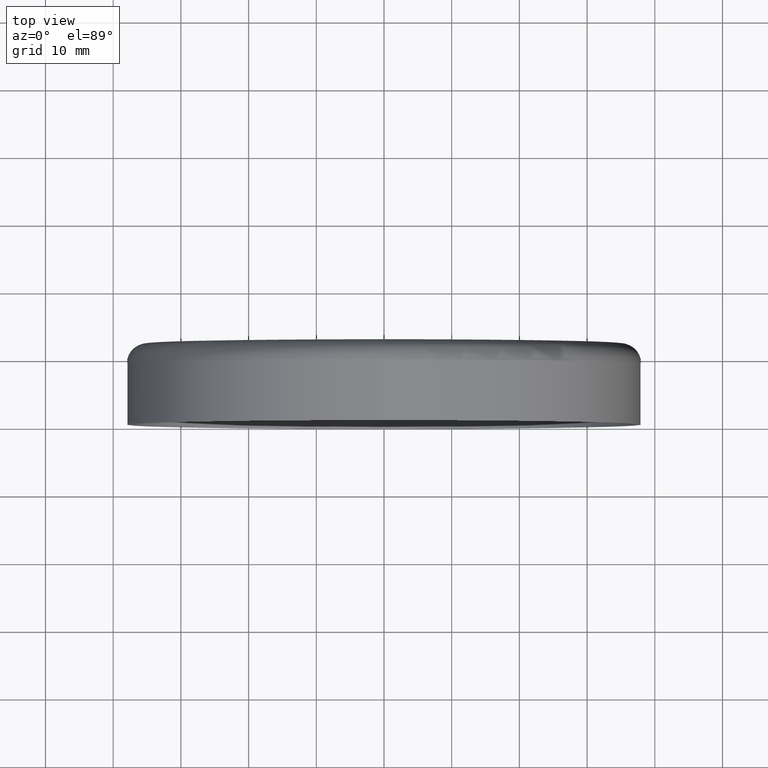
[diagram: clean part render]
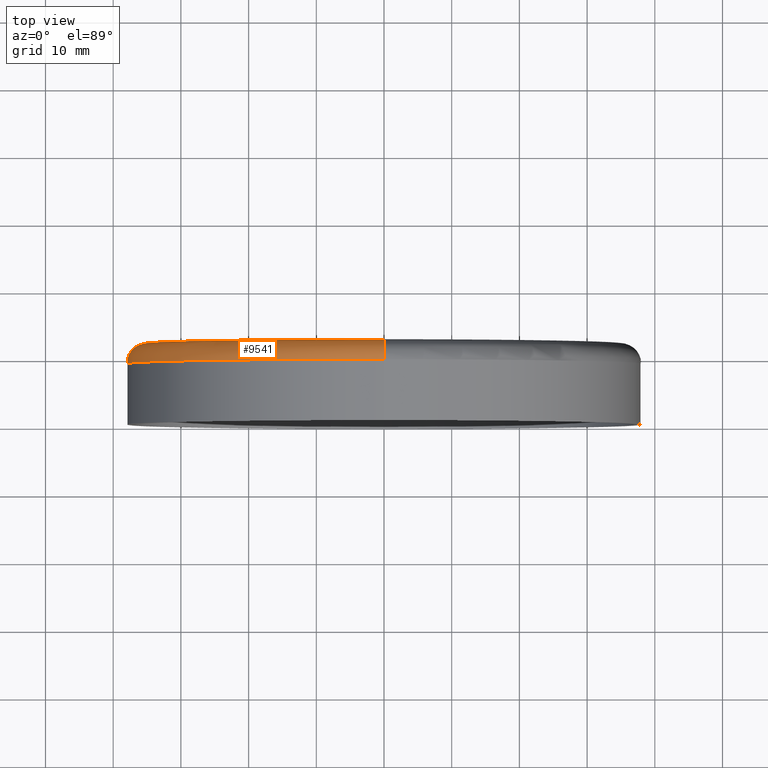
[diagram: same view with one face highlighted and labeled with its STEP entity id]
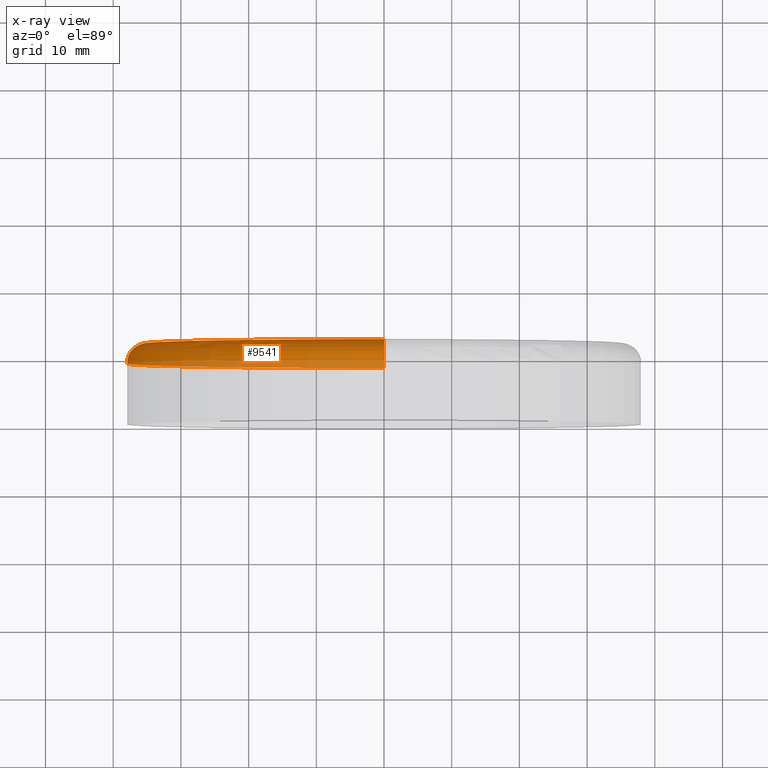
[diagram: x-ray of the same camera — body ghosted, the highlighted face saturated]
A machine part, top view. The second image highlights one B-rep face of the part: STEP entity #9541.
The next image is the same camera in x-ray: the body ghosted, the highlighted face saturated — about 27% of this face is hidden behind the body in this view.
In plain terms, the highlighted toroidal blend (fillet) surface has major radius 35 mm and minor (blend) radius 3 mm.
Its self-contained STEP definition (entity closure, byte-faithful):
#413 = AXIS2_PLACEMENT_3D ( 'NONE', #12898, #8841, #10985 ) ;
#534 = CIRCLE ( 'NONE', #8892, 38.00000000000000711 ) ;
#720 = VERTEX_POINT ( 'NONE', #7881 ) ;
#1044 = CIRCLE ( 'NONE', #10314, 35.00000000000000000 ) ;
#1537 = EDGE_CURVE ( 'NONE', #1704, #720, #534, .T. ) ;
#1682 = CARTESIAN_POINT ( 'NONE',  ( 0.000000000000000000, 12.00000000000000000, 0.000000000000000000 ) ) ;
#1704 = VERTEX_POINT ( 'NONE', #11798 ) ;
#2572 = CARTESIAN_POINT ( 'NONE',  ( 4.286263797015736496E-15, 9.000000000000001776, 35.00000000000000000 ) ) ;
#2620 = EDGE_CURVE ( 'NONE', #9972, #720, #8351, .T. ) ;
#3001 = CIRCLE ( 'NONE', #12755, 3.000000000000002665 ) ;
#3746 = DIRECTION ( 'NONE',  ( -0.000000000000000000, -1.000000000000000000, -0.000000000000000000 ) ) ;
#4007 = TOROIDAL_SURFACE ( 'NONE', #6901, 35.00000000000000000, 3.000000000000000888 ) ;
#4269 = ORIENTED_EDGE ( 'NONE', *, *, #1537, .F. ) ;
#4518 = FACE_OUTER_BOUND ( 'NONE', #9047, .T. ) ;
#6149 = DIRECTION ( 'NONE',  ( -0.000000000000000000, -1.000000000000000000, -0.000000000000000000 ) ) ;
#6901 = AXIS2_PLACEMENT_3D ( 'NONE', #7049, #7733, #8061 ) ;
#7049 = CARTESIAN_POINT ( 'NONE',  ( 0.000000000000000000, 9.000000000000001776, 0.000000000000000000 ) ) ;
#7314 = DIRECTION ( 'NONE',  ( 0.000000000000000000, 0.000000000000000000, -1.000000000000000000 ) ) ;
#7711 = VERTEX_POINT ( 'NONE', #10129 ) ;
#7733 = DIRECTION ( 'NONE',  ( -0.000000000000000000, -1.000000000000000000, -0.000000000000000000 ) ) ;
#7881 = CARTESIAN_POINT ( 'NONE',  ( 0.000000000000000000, 9.000000000000001776, -38.00000000000000711 ) ) ;
#8061 = DIRECTION ( 'NONE',  ( 0.000000000000000000, 0.000000000000000000, -1.000000000000000000 ) ) ;
#8351 = CIRCLE ( 'NONE', #413, 3.000000000000002665 ) ;
#8791 = DIRECTION ( 'NONE',  ( -1.224646799147351975E-16, 0.000000000000000000, -1.000000000000000000 ) ) ;
#8841 = DIRECTION ( 'NONE',  ( -1.000000000000000000, 0.000000000000000000, 0.000000000000000000 ) ) ;
#8892 = AXIS2_PLACEMENT_3D ( 'NONE', #12402, #6149, #7314 ) ;
#9047 = EDGE_LOOP ( 'NONE', ( #10286, #12713, #9656, #4269 ) ) ;
#9541 = ADVANCED_FACE ( 'NONE', ( #4518 ), #4007, .T. ) ;
#9546 = EDGE_CURVE ( 'NONE', #7711, #1704, #3001, .T. ) ;
#9656 = ORIENTED_EDGE ( 'NONE', *, *, #2620, .T. ) ;
#9972 = VERTEX_POINT ( 'NONE', #10973 ) ;
#10129 = CARTESIAN_POINT ( 'NONE',  ( 4.469960816887840007E-15, 12.00000000000000000, 35.00000000000000000 ) ) ;
#10156 = DIRECTION ( 'NONE',  ( 1.000000000000000000, 0.000000000000000000, -1.224646799147353207E-16 ) ) ;
#10286 = ORIENTED_EDGE ( 'NONE', *, *, #9546, .F. ) ;
#10314 = AXIS2_PLACEMENT_3D ( 'NONE', #1682, #3746, #12225 ) ;
#10973 = CARTESIAN_POINT ( 'NONE',  ( 0.000000000000000000, 12.00000000000000000, -35.00000000000000000 ) ) ;
#10985 = DIRECTION ( 'NONE',  ( 0.000000000000000000, 0.000000000000000000, 1.000000000000000000 ) ) ;
#11145 = EDGE_CURVE ( 'NONE', #7711, #9972, #1044, .T. ) ;
#11798 = CARTESIAN_POINT ( 'NONE',  ( 4.653657836759942730E-15, 9.000000000000001776, 38.00000000000000711 ) ) ;
#12225 = DIRECTION ( 'NONE',  ( 0.000000000000000000, 0.000000000000000000, -1.000000000000000000 ) ) ;
#12402 = CARTESIAN_POINT ( 'NONE',  ( 0.000000000000000000, 9.000000000000001776, 0.000000000000000000 ) ) ;
#12713 = ORIENTED_EDGE ( 'NONE', *, *, #11145, .T. ) ;
#12755 = AXIS2_PLACEMENT_3D ( 'NONE', #2572, #10156, #8791 ) ;
#12898 = CARTESIAN_POINT ( 'NONE',  ( 0.000000000000000000, 9.000000000000001776, -35.00000000000000000 ) ) ;